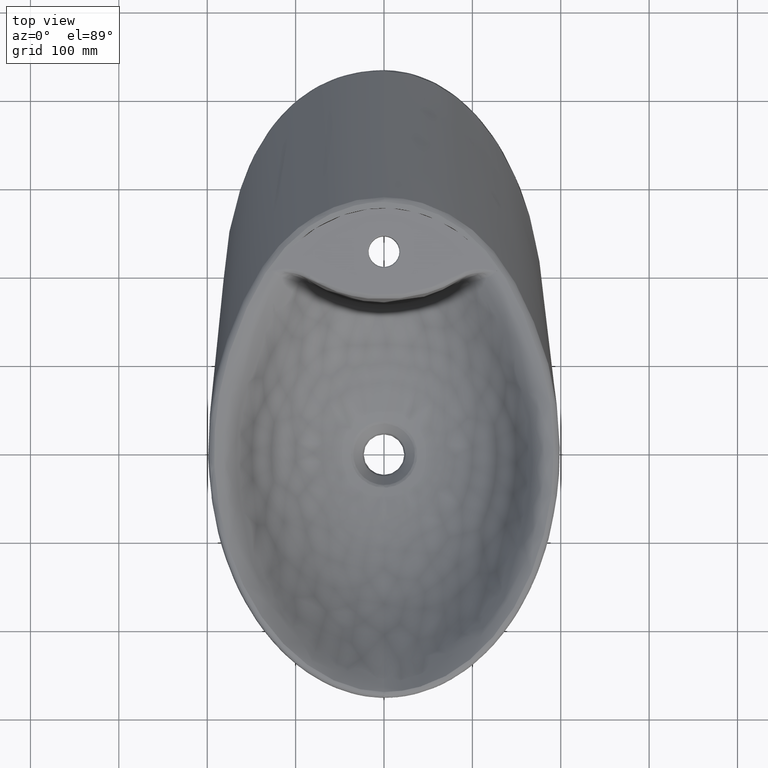
[diagram: clean part render]
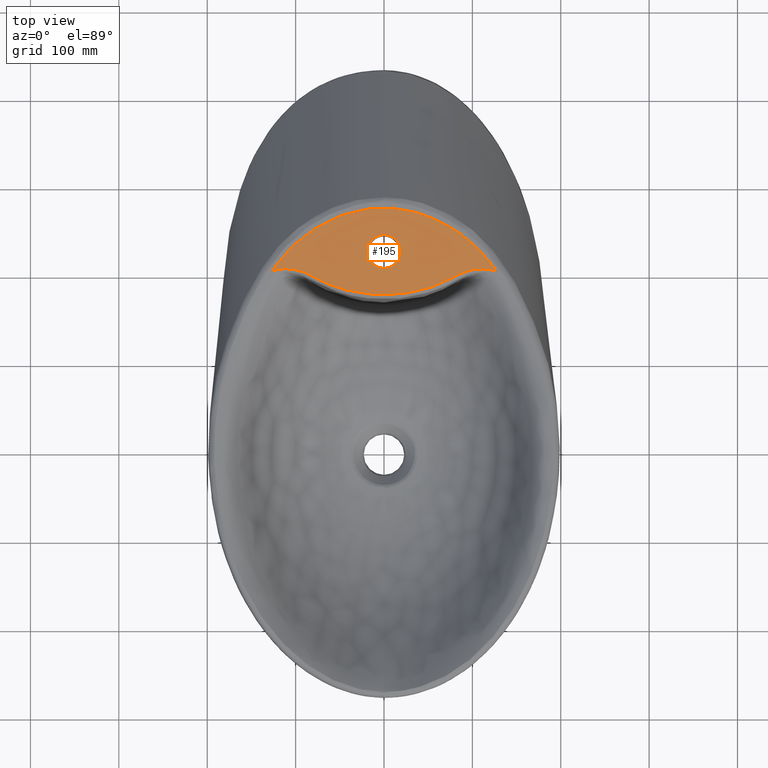
[diagram: same view with one face highlighted and labeled with its STEP entity id]
A machine part, top view. The second image highlights one B-rep face of the part: STEP entity #195.
In plain terms, the highlighted planar face has unit normal (0, 0, 1).
Its self-contained STEP definition (entity closure, byte-faithful):
#195=ADVANCED_FACE('',(#341,#342),#247,.T.);
#247=PLANE('',#831);
#249=B_SPLINE_CURVE_WITH_KNOTS('',3,(#883,#884,#885,#886,#887,#888,#889,
#890,#891,#892),.UNSPECIFIED.,.F.,.F.,(4,3,3,4),(0.,0.263753416033954,0.883909581513027,
1.),.UNSPECIFIED.);
#250=B_SPLINE_CURVE_WITH_KNOTS('',3,(#895,#896,#897,#898,#899,#900),
 .UNSPECIFIED.,.F.,.F.,(4,2,4),(0.,0.5,1.),.UNSPECIFIED.);
#251=B_SPLINE_CURVE_WITH_KNOTS('',3,(#902,#903,#904,#905,#906,#907,#908,
#909,#910,#911,#912,#913,#914,#915),.UNSPECIFIED.,.F.,.F.,(4,2,2,2,2,2,
4),(0.,0.25,0.375,0.5,0.625,0.75,1.),.UNSPECIFIED.);
#252=B_SPLINE_CURVE_WITH_KNOTS('',3,(#917,#918,#919,#920,#921,#922),
 .UNSPECIFIED.,.F.,.F.,(4,2,4),(0.,0.5,1.),.UNSPECIFIED.);
#253=B_SPLINE_CURVE_WITH_KNOTS('',3,(#924,#925,#926,#927,#928,#929,#930,
#931,#932,#933),.UNSPECIFIED.,.F.,.F.,(4,3,3,4),(0.,0.131887262117853,0.737888929786613,
1.),.UNSPECIFIED.);
#254=B_SPLINE_CURVE_WITH_KNOTS('',3,(#935,#936,#937,#938,#939,#940,#941,
#942,#943,#944,#945,#946,#947,#948,#949,#950,#951,#952,#953,#954),
 .UNSPECIFIED.,.F.,.F.,(4,2,2,2,2,2,2,2,2,4),(0.,0.125,0.25,0.3125,0.375,
0.5,0.625,0.75,0.875,1.),.UNSPECIFIED.);
#341=FACE_BOUND('',#367,.T.);
#342=FACE_BOUND('',#368,.T.);
#367=EDGE_LOOP('',(#433));
#368=EDGE_LOOP('',(#434,#435,#436,#437,#438,#439));
#433=ORIENTED_EDGE('',*,*,#711,.T.);
#434=ORIENTED_EDGE('',*,*,#712,.F.);
#435=ORIENTED_EDGE('',*,*,#713,.F.);
#436=ORIENTED_EDGE('',*,*,#714,.F.);
#437=ORIENTED_EDGE('',*,*,#715,.F.);
#438=ORIENTED_EDGE('',*,*,#716,.F.);
#439=ORIENTED_EDGE('',*,*,#717,.F.);
#645=VERTEX_POINT('',#882);
#646=VERTEX_POINT('',#893);
#647=VERTEX_POINT('',#894);
#648=VERTEX_POINT('',#901);
#649=VERTEX_POINT('',#916);
#650=VERTEX_POINT('',#923);
#651=VERTEX_POINT('',#934);
#711=EDGE_CURVE('',#645,#645,#817,.T.);
#712=EDGE_CURVE('',#646,#647,#249,.T.);
#713=EDGE_CURVE('',#648,#646,#250,.T.);
#714=EDGE_CURVE('',#649,#648,#251,.T.);
#715=EDGE_CURVE('',#650,#649,#252,.T.);
#716=EDGE_CURVE('',#651,#650,#253,.T.);
#717=EDGE_CURVE('',#647,#651,#254,.T.);
#817=CIRCLE('',#830,19.);
#830=AXIS2_PLACEMENT_3D('',#881,#848,#849);
#831=AXIS2_PLACEMENT_3D('',#955,#850,#851);
#848=DIRECTION('',(0.,0.,-1.));
#849=DIRECTION('',(1.,0.,0.));
#850=DIRECTION('',(0.,0.,1.));
#851=DIRECTION('',(1.,0.,0.));
#881=CARTESIAN_POINT('',(0.,227.637031537379,-2.78689748319223));
#882=CARTESIAN_POINT('',(19.,227.637031537379,-2.78689748319223));
#883=CARTESIAN_POINT('',(-112.470686409225,208.141443279212,-2.78689748319223));
#884=CARTESIAN_POINT('',(-113.76669954037,208.02661811361,-2.78689748319223));
#885=CARTESIAN_POINT('',(-115.059746671048,207.875946270228,-2.78689748319223));
#886=CARTESIAN_POINT('',(-116.349055309546,207.701251995995,-2.78689748319223));
#887=CARTESIAN_POINT('',(-119.381120112005,207.290423785993,-2.78689748319223));
#888=CARTESIAN_POINT('',(-122.406585680382,206.83188260659,-2.78689748319223));
#889=CARTESIAN_POINT('',(-125.432007076609,206.37469319322,-2.78689748319223));
#890=CARTESIAN_POINT('',(-125.998358856577,206.289108408777,-2.78689748319223));
#891=CARTESIAN_POINT('',(-126.564622772261,206.202941199482,-2.78689748319217));
#892=CARTESIAN_POINT('',(-127.130822535655,206.116356432147,-2.78689748319217));
#893=CARTESIAN_POINT('',(-112.470686409225,208.141443279212,-2.78689748319223));
#894=CARTESIAN_POINT('',(-127.130822535655,206.116356432147,-2.78689748319217));
#895=CARTESIAN_POINT('',(-83.0258085942605,200.773291483691,-2.78689748319223));
#896=CARTESIAN_POINT('',(-87.4902257622616,203.369765287077,-2.78689748319223));
#897=CARTESIAN_POINT('',(-92.2102416234335,205.282528679583,-2.78689748319219));
#898=CARTESIAN_POINT('',(-102.14839447759,207.775612800376,-2.78689748319219));
#899=CARTESIAN_POINT('',(-107.309532553895,208.329783649553,-2.78689748319223));
#900=CARTESIAN_POINT('',(-112.470686409225,208.141443279212,-2.78689748319223));
#901=CARTESIAN_POINT('',(-83.0246112634567,200.775352419221,-2.78689748319223));
#902=CARTESIAN_POINT('',(82.8901752236169,200.661691436617,-2.78689748319223));
#903=CARTESIAN_POINT('',(70.2407222937177,193.335146178134,-2.78689748319223));
#904=CARTESIAN_POINT('',(56.9168066146663,187.820898086433,-2.78689748319222));
#905=CARTESIAN_POINT('',(35.9497591405331,182.185963294027,-2.78689748319222));
#906=CARTESIAN_POINT('',(28.7463147005457,180.74917582139,-2.78689748319225));
#907=CARTESIAN_POINT('',(14.2944538046888,178.854823158506,-2.78689748319225));
#908=CARTESIAN_POINT('',(7.07836558955473,178.392695010212,-2.78689748319223));
#909=CARTESIAN_POINT('',(-7.33477564473563,178.406537559461,-2.78689748319223));
#910=CARTESIAN_POINT('',(-14.531827067723,178.882586919927,-2.78689748319223));
#911=CARTESIAN_POINT('',(-28.9065287142362,180.790821991868,-2.78689748319223));
#912=CARTESIAN_POINT('',(-36.1098543779538,182.236230148969,-2.78689748319227));
#913=CARTESIAN_POINT('',(-57.0682934647988,187.901462651303,-2.78689748319227));
#914=CARTESIAN_POINT('',(-70.3851015133879,193.432243353871,-2.78689748319223));
#915=CARTESIAN_POINT('',(-83.0246112634567,200.775352419221,-2.78689748319223));
#916=CARTESIAN_POINT('',(82.8905696180642,200.661010505315,-2.78689748319223));
#917=CARTESIAN_POINT('',(112.591222054034,207.968552385847,-2.78689748319223));
#918=CARTESIAN_POINT('',(107.390363406727,208.18671517477,-2.78689748319223));
#919=CARTESIAN_POINT('',(102.185503440475,207.663384715152,-2.78689748319223));
#920=CARTESIAN_POINT('',(92.1579536121768,205.184238590695,-2.78689748319223));
#921=CARTESIAN_POINT('',(87.3963977001129,203.266575829897,-2.78689748319223));
#922=CARTESIAN_POINT('',(82.8909640125116,200.660329574014,-2.78689748319223));
#923=CARTESIAN_POINT('',(112.591222054034,207.968552385847,-2.78689748319223));
#924=CARTESIAN_POINT('',(127.26250550685,205.865089728091,-2.78689748319043));
#925=CARTESIAN_POINT('',(126.619367103259,205.970624136929,-2.78689748319043));
#926=CARTESIAN_POINT('',(125.976553567116,206.078129429708,-2.78689748319223));
#927=CARTESIAN_POINT('',(125.333646431229,206.185063672348,-2.78689748319223));
#928=CARTESIAN_POINT('',(122.379960504976,206.676347949485,-2.78689748319223));
#929=CARTESIAN_POINT('',(119.418214079998,207.1216785162,-2.78689748319223));
#930=CARTESIAN_POINT('',(116.450255797668,207.517714406311,-2.78689748319223));
#931=CARTESIAN_POINT('',(115.166540802587,207.689009674763,-2.78689748319223));
#932=CARTESIAN_POINT('',(113.880681961435,207.847890027202,-2.78689748319223));
#933=CARTESIAN_POINT('',(112.591222054034,207.968552385847,-2.78689748319223));
#934=CARTESIAN_POINT('',(127.26250550685,205.865089728091,-2.78689748319043));
#935=CARTESIAN_POINT('',(-127.130822535654,206.116356432147,-2.78689748319223));
#936=CARTESIAN_POINT('',(-119.767658016002,216.456616311225,-2.78689748319223));
#937=CARTESIAN_POINT('',(-111.569154496716,226.088991801968,-2.78689748319223));
#938=CARTESIAN_POINT('',(-93.2442262517892,243.307597268582,-2.78689748319223));
#939=CARTESIAN_POINT('',(-82.9443769020317,250.958448863828,-2.78689748319223));
#940=CARTESIAN_POINT('',(-66.5237881252993,260.294128458776,-2.78689748319223));
#941=CARTESIAN_POINT('',(-60.884355684737,263.085950501848,-2.78689748319223));
#942=CARTESIAN_POINT('',(-49.2519846237847,267.98758621677,-2.78689748319223));
#943=CARTESIAN_POINT('',(-43.2163799321988,270.100616967863,-2.78689748319223));
#944=CARTESIAN_POINT('',(-24.9555225937735,275.159871982658,-2.78689748319223));
#945=CARTESIAN_POINT('',(-12.5101092048477,276.897077043918,-2.78689748319223));
#946=CARTESIAN_POINT('',(12.96426094979,276.851530134093,-2.78689748319223));
#947=CARTESIAN_POINT('',(25.6835111704565,275.00779920914,-2.78689748319223));
#948=CARTESIAN_POINT('',(49.7983531687537,268.204931363365,-2.78689748319223));
#949=CARTESIAN_POINT('',(61.3137252445439,263.274504093749,-2.78689748319223));
#950=CARTESIAN_POINT('',(83.3667864547885,250.655834442088,-2.78689748319223));
#951=CARTESIAN_POINT('',(93.409535374173,243.138580177442,-2.78689748319223));
#952=CARTESIAN_POINT('',(111.663864157291,225.935897948555,-2.78689748319223));
#953=CARTESIAN_POINT('',(119.920859520377,216.209120882457,-2.78689748319223));
#954=CARTESIAN_POINT('',(127.262505506838,205.865089728083,-2.78689748319223));
#955=CARTESIAN_POINT('',(-449.968577602857,283.73024834798,-2.78689748319223));